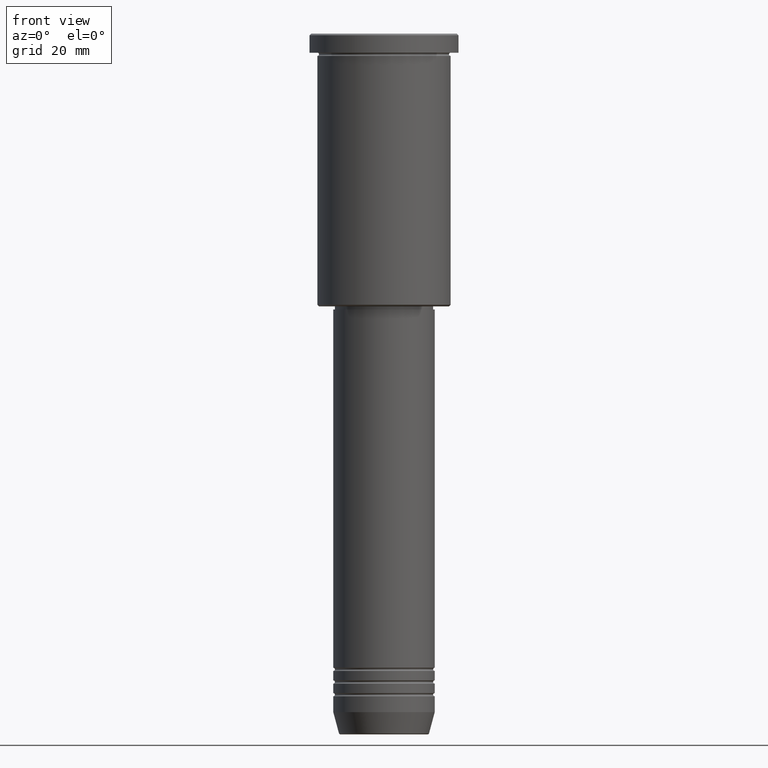
[diagram: clean part render]
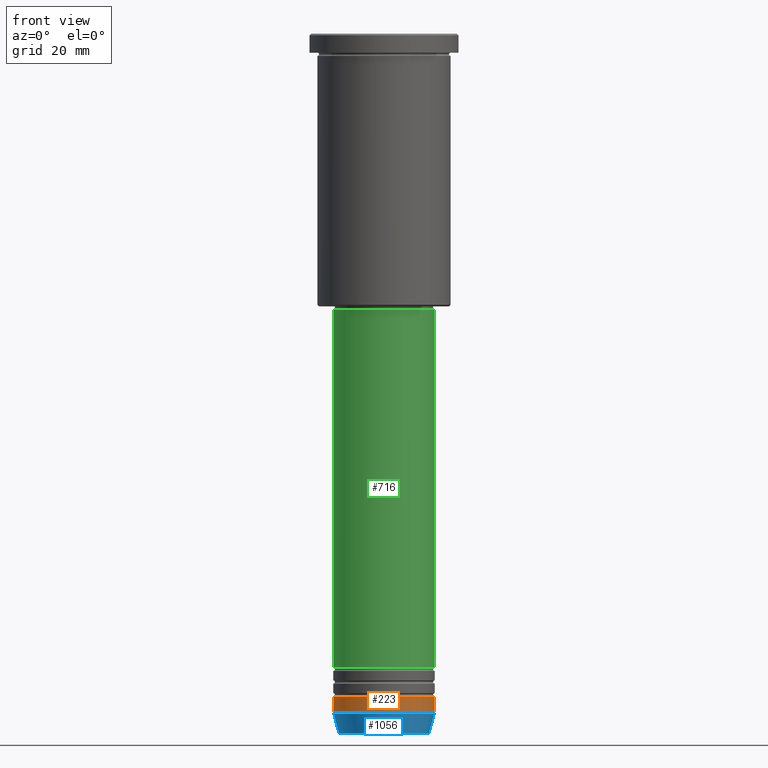
[diagram: same view with three faces highlighted in distinct colors, each labeled with its STEP entity id]
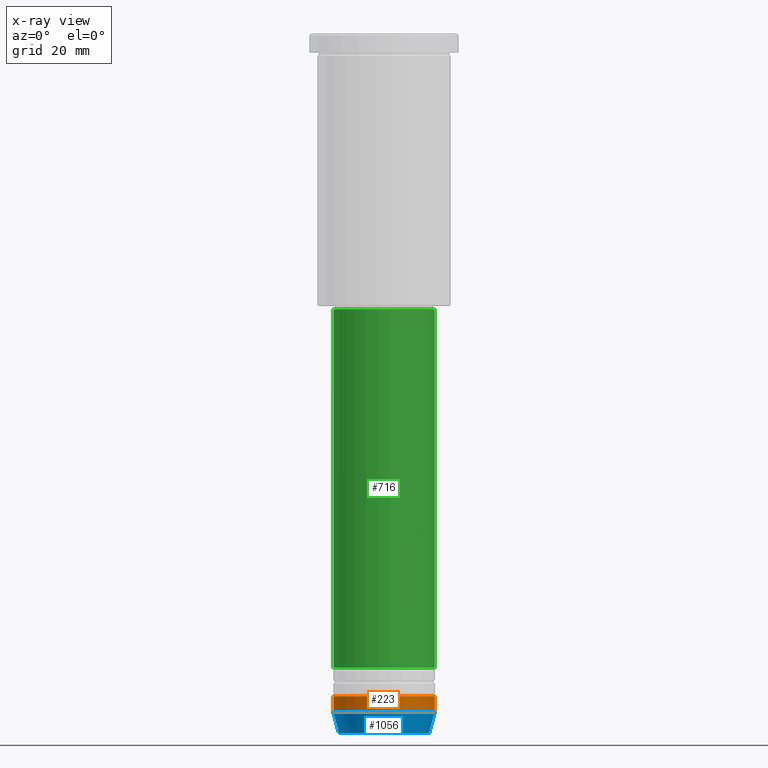
[diagram: x-ray of the same camera — body ghosted, the three highlighted faces saturated]
A machine part, front view with three faces highlighted in distinct colors.
The next image is the same camera in x-ray (body ghosted, the three faces saturated) — at least one of them is partly hidden behind the body in this view.
Their STEP definitions:

[orange] entity #223 — the highlighted cylindrical surface (partial cylindrical patch) has radius 16 mm, axis along (-0, -0, 1).
#2 = ORIENTED_EDGE ( 'NONE', *, *, #611, .F. ) ;
#53 = DIRECTION ( 'NONE',  ( -0.000000000000000000, -0.000000000000000000, 1.000000000000000000 ) ) ;
#54 = DIRECTION ( 'NONE',  ( -0.000000000000000000, -0.000000000000000000, 1.000000000000000000 ) ) ;
#61 = CARTESIAN_POINT ( 'NONE',  ( -16.00000000000000000, 1.959434878635765131E-15, -214.0000000000000284 ) ) ;
#63 = DIRECTION ( 'NONE',  ( -0.000000000000000000, -0.000000000000000000, 1.000000000000000000 ) ) ;
#74 = VERTEX_POINT ( 'NONE', #319 ) ;
#129 = EDGE_CURVE ( 'NONE', #74, #545, #514, .T. ) ;
#139 = DIRECTION ( 'NONE',  ( -0.000000000000000000, -0.000000000000000000, 1.000000000000000000 ) ) ;
#161 = DIRECTION ( 'NONE',  ( -0.000000000000000000, -0.000000000000000000, 1.000000000000000000 ) ) ;
#223 = ADVANCED_FACE ( 'NONE', ( #737 ), #1102, .T. ) ;
#240 = LINE ( 'NONE', #971, #918 ) ;
#271 = EDGE_CURVE ( 'NONE', #648, #581, #240, .T. ) ;
#301 = VECTOR ( 'NONE', #53, 1000.000000000000000 ) ;
#319 = CARTESIAN_POINT ( 'NONE',  ( 16.00000000000000000, 0.000000000000000000, -214.0000000000000284 ) ) ;
#475 = AXIS2_PLACEMENT_3D ( 'NONE', #1033, #54, #778 ) ;
#479 = ORIENTED_EDGE ( 'NONE', *, *, #271, .F. ) ;
#514 = LINE ( 'NONE', #872, #301 ) ;
#545 = VERTEX_POINT ( 'NONE', #826 ) ;
#575 = CIRCLE ( 'NONE', #920, 16.00000000000000000 ) ;
#581 = VERTEX_POINT ( 'NONE', #677 ) ;
#604 = DIRECTION ( 'NONE',  ( 1.000000000000000000, 0.000000000000000000, 0.000000000000000000 ) ) ;
#611 = EDGE_CURVE ( 'NONE', #581, #545, #575, .T. ) ;
#638 = CARTESIAN_POINT ( 'NONE',  ( 0.000000000000000000, 0.000000000000000000, 0.000000000000000000 ) ) ;
#648 = VERTEX_POINT ( 'NONE', #61 ) ;
#677 = CARTESIAN_POINT ( 'NONE',  ( -16.00000000000000000, 1.959434878635765131E-15, -209.0000000000000568 ) ) ;
#688 = AXIS2_PLACEMENT_3D ( 'NONE', #638, #63, #604 ) ;
#702 = EDGE_LOOP ( 'NONE', ( #479, #1009, #985, #2 ) ) ;
#737 = FACE_OUTER_BOUND ( 'NONE', #702, .T. ) ;
#767 = CARTESIAN_POINT ( 'NONE',  ( 0.000000000000000000, 0.000000000000000000, -209.0000000000000568 ) ) ;
#778 = DIRECTION ( 'NONE',  ( 1.000000000000000000, 0.000000000000000000, 0.000000000000000000 ) ) ;
#826 = CARTESIAN_POINT ( 'NONE',  ( 16.00000000000000000, 0.000000000000000000, -209.0000000000000568 ) ) ;
#872 = CARTESIAN_POINT ( 'NONE',  ( 16.00000000000000000, 0.000000000000000000, 0.000000000000000000 ) ) ;
#918 = VECTOR ( 'NONE', #161, 1000.000000000000000 ) ;
#920 = AXIS2_PLACEMENT_3D ( 'NONE', #767, #139, #1149 ) ;
#950 = CIRCLE ( 'NONE', #475, 16.00000000000000000 ) ;
#971 = CARTESIAN_POINT ( 'NONE',  ( -16.00000000000000000, 1.959434878635765131E-15, 0.000000000000000000 ) ) ;
#985 = ORIENTED_EDGE ( 'NONE', *, *, #129, .T. ) ;
#1009 = ORIENTED_EDGE ( 'NONE', *, *, #1108, .T. ) ;
#1033 = CARTESIAN_POINT ( 'NONE',  ( 0.000000000000000000, 0.000000000000000000, -214.0000000000000284 ) ) ;
#1102 = CYLINDRICAL_SURFACE ( 'NONE', #688, 16.00000000000000000 ) ;
#1108 = EDGE_CURVE ( 'NONE', #648, #74, #950, .T. ) ;
#1149 = DIRECTION ( 'NONE',  ( 1.000000000000000000, 0.000000000000000000, 0.000000000000000000 ) ) ;

[blue] entity #1056 — the highlighted conical surface has half-angle 15 deg.
#12 = ORIENTED_EDGE ( 'NONE', *, *, #1152, .T. ) ;
#16 = EDGE_CURVE ( 'NONE', #655, #74, #31, .T. ) ;
#31 = LINE ( 'NONE', #909, #846 ) ;
#54 = DIRECTION ( 'NONE',  ( -0.000000000000000000, -0.000000000000000000, 1.000000000000000000 ) ) ;
#59 = DIRECTION ( 'NONE',  ( 1.000000000000000000, 0.000000000000000000, 0.000000000000000000 ) ) ;
#61 = CARTESIAN_POINT ( 'NONE',  ( -16.00000000000000000, 1.959434878635765131E-15, -214.0000000000000284 ) ) ;
#74 = VERTEX_POINT ( 'NONE', #319 ) ;
#94 = CARTESIAN_POINT ( 'NONE',  ( 0.000000000000000000, 0.000000000000000000, -220.6294095225512706 ) ) ;
#97 = CONICAL_SURFACE ( 'NONE', #261, 16.00000000000000000, 0.2617993877991500740 ) ;
#198 = EDGE_LOOP ( 'NONE', ( #780, #12, #522, #740 ) ) ;
#225 = CARTESIAN_POINT ( 'NONE',  ( 0.000000000000000000, 0.000000000000000000, -214.0000000000000284 ) ) ;
#238 = VERTEX_POINT ( 'NONE', #371 ) ;
#261 = AXIS2_PLACEMENT_3D ( 'NONE', #225, #580, #59 ) ;
#295 = DIRECTION ( 'NONE',  ( -0.2588190451025213501, 3.169619151431772337E-17, 0.9659258262890680902 ) ) ;
#307 = FACE_OUTER_BOUND ( 'NONE', #198, .T. ) ;
#319 = CARTESIAN_POINT ( 'NONE',  ( 16.00000000000000000, 0.000000000000000000, -214.0000000000000284 ) ) ;
#371 = CARTESIAN_POINT ( 'NONE',  ( -14.22365507213718239, 1.850665122131322942E-15, -220.6294095225512706 ) ) ;
#459 = DIRECTION ( 'NONE',  ( 0.2588190451025213501, 0.000000000000000000, 0.9659258262890680902 ) ) ;
#475 = AXIS2_PLACEMENT_3D ( 'NONE', #1033, #54, #778 ) ;
#522 = ORIENTED_EDGE ( 'NONE', *, *, #16, .T. ) ;
#580 = DIRECTION ( 'NONE',  ( -0.000000000000000000, -0.000000000000000000, 1.000000000000000000 ) ) ;
#647 = LINE ( 'NONE', #1131, #1066 ) ;
#648 = VERTEX_POINT ( 'NONE', #61 ) ;
#655 = VERTEX_POINT ( 'NONE', #787 ) ;
#740 = ORIENTED_EDGE ( 'NONE', *, *, #1108, .F. ) ;
#778 = DIRECTION ( 'NONE',  ( 1.000000000000000000, 0.000000000000000000, 0.000000000000000000 ) ) ;
#780 = ORIENTED_EDGE ( 'NONE', *, *, #832, .F. ) ;
#787 = CARTESIAN_POINT ( 'NONE',  ( 14.22365507213718239, 0.000000000000000000, -220.6294095225512706 ) ) ;
#805 = DIRECTION ( 'NONE',  ( -0.000000000000000000, -0.000000000000000000, 1.000000000000000000 ) ) ;
#811 = DIRECTION ( 'NONE',  ( 1.000000000000000000, 0.000000000000000000, 0.000000000000000000 ) ) ;
#832 = EDGE_CURVE ( 'NONE', #238, #648, #647, .T. ) ;
#846 = VECTOR ( 'NONE', #459, 1000.000000000000000 ) ;
#909 = CARTESIAN_POINT ( 'NONE',  ( 16.00000000000000000, 0.000000000000000000, -214.0000000000000284 ) ) ;
#950 = CIRCLE ( 'NONE', #475, 16.00000000000000000 ) ;
#990 = AXIS2_PLACEMENT_3D ( 'NONE', #94, #805, #811 ) ;
#1033 = CARTESIAN_POINT ( 'NONE',  ( 0.000000000000000000, 0.000000000000000000, -214.0000000000000284 ) ) ;
#1056 = ADVANCED_FACE ( 'NONE', ( #307 ), #97, .T. ) ;
#1066 = VECTOR ( 'NONE', #295, 1000.000000000000000 ) ;
#1108 = EDGE_CURVE ( 'NONE', #648, #74, #950, .T. ) ;
#1131 = CARTESIAN_POINT ( 'NONE',  ( -16.00000000000000000, 1.959434878635765131E-15, -214.0000000000000284 ) ) ;
#1152 = EDGE_CURVE ( 'NONE', #238, #655, #1173, .T. ) ;
#1173 = CIRCLE ( 'NONE', #990, 14.22365507213718239 ) ;

[green] entity #716 — the highlighted cylindrical surface (partial cylindrical patch) has radius 16 mm, axis along (-0, -0, 1).
#62 = VECTOR ( 'NONE', #672, 1000.000000000000000 ) ;
#77 = ORIENTED_EDGE ( 'NONE', *, *, #542, .T. ) ;
#80 = CIRCLE ( 'NONE', #234, 16.00000000000000000 ) ;
#86 = LINE ( 'NONE', #643, #762 ) ;
#96 = DIRECTION ( 'NONE',  ( -0.000000000000000000, -0.000000000000000000, 1.000000000000000000 ) ) ;
#153 = ORIENTED_EDGE ( 'NONE', *, *, #215, .T. ) ;
#157 = VERTEX_POINT ( 'NONE', #377 ) ;
#188 = DIRECTION ( 'NONE',  ( -0.000000000000000000, -0.000000000000000000, 1.000000000000000000 ) ) ;
#189 = EDGE_CURVE ( 'NONE', #786, #967, #86, .T. ) ;
#215 = EDGE_CURVE ( 'NONE', #786, #335, #80, .T. ) ;
#234 = AXIS2_PLACEMENT_3D ( 'NONE', #265, #188, #452 ) ;
#265 = CARTESIAN_POINT ( 'NONE',  ( 0.000000000000000000, 0.000000000000000000, -199.9999999999999147 ) ) ;
#280 = LINE ( 'NONE', #297, #62 ) ;
#297 = CARTESIAN_POINT ( 'NONE',  ( 16.00000000000000000, 0.000000000000000000, 0.000000000000000000 ) ) ;
#335 = VERTEX_POINT ( 'NONE', #1157 ) ;
#345 = DIRECTION ( 'NONE',  ( 1.000000000000000000, 0.000000000000000000, 0.000000000000000000 ) ) ;
#377 = CARTESIAN_POINT ( 'NONE',  ( 16.00000000000000355, 0.000000000000000000, -87.00000000000004263 ) ) ;
#416 = EDGE_CURVE ( 'NONE', #967, #157, #939, .T. ) ;
#439 = ORIENTED_EDGE ( 'NONE', *, *, #189, .F. ) ;
#452 = DIRECTION ( 'NONE',  ( 1.000000000000000000, 0.000000000000000000, 0.000000000000000000 ) ) ;
#455 = CYLINDRICAL_SURFACE ( 'NONE', #652, 16.00000000000000000 ) ;
#520 = DIRECTION ( 'NONE',  ( -0.000000000000000000, -0.000000000000000000, 1.000000000000000000 ) ) ;
#542 = EDGE_CURVE ( 'NONE', #335, #157, #280, .T. ) ;
#557 = CARTESIAN_POINT ( 'NONE',  ( -16.00000000000000355, 1.959434878635765526E-15, -87.00000000000004263 ) ) ;
#599 = CARTESIAN_POINT ( 'NONE',  ( 0.000000000000000000, 0.000000000000000000, -87.00000000000004263 ) ) ;
#643 = CARTESIAN_POINT ( 'NONE',  ( -16.00000000000000000, 1.959434878635765131E-15, 0.000000000000000000 ) ) ;
#652 = AXIS2_PLACEMENT_3D ( 'NONE', #988, #96, #345 ) ;
#672 = DIRECTION ( 'NONE',  ( -0.000000000000000000, -0.000000000000000000, 1.000000000000000000 ) ) ;
#692 = DIRECTION ( 'NONE',  ( 1.000000000000000000, 0.000000000000000000, 0.000000000000000000 ) ) ;
#716 = ADVANCED_FACE ( 'NONE', ( #1177 ), #455, .T. ) ;
#762 = VECTOR ( 'NONE', #520, 1000.000000000000000 ) ;
#782 = DIRECTION ( 'NONE',  ( -0.000000000000000000, -0.000000000000000000, 1.000000000000000000 ) ) ;
#786 = VERTEX_POINT ( 'NONE', #1172 ) ;
#801 = AXIS2_PLACEMENT_3D ( 'NONE', #599, #782, #692 ) ;
#869 = ORIENTED_EDGE ( 'NONE', *, *, #416, .F. ) ;
#939 = CIRCLE ( 'NONE', #801, 16.00000000000000355 ) ;
#967 = VERTEX_POINT ( 'NONE', #557 ) ;
#988 = CARTESIAN_POINT ( 'NONE',  ( 0.000000000000000000, 0.000000000000000000, 0.000000000000000000 ) ) ;
#1025 = EDGE_LOOP ( 'NONE', ( #439, #153, #77, #869 ) ) ;
#1157 = CARTESIAN_POINT ( 'NONE',  ( 16.00000000000000000, 0.000000000000000000, -199.9999999999999147 ) ) ;
#1172 = CARTESIAN_POINT ( 'NONE',  ( -16.00000000000000000, 1.959434878635765131E-15, -199.9999999999999147 ) ) ;
#1177 = FACE_OUTER_BOUND ( 'NONE', #1025, .T. ) ;